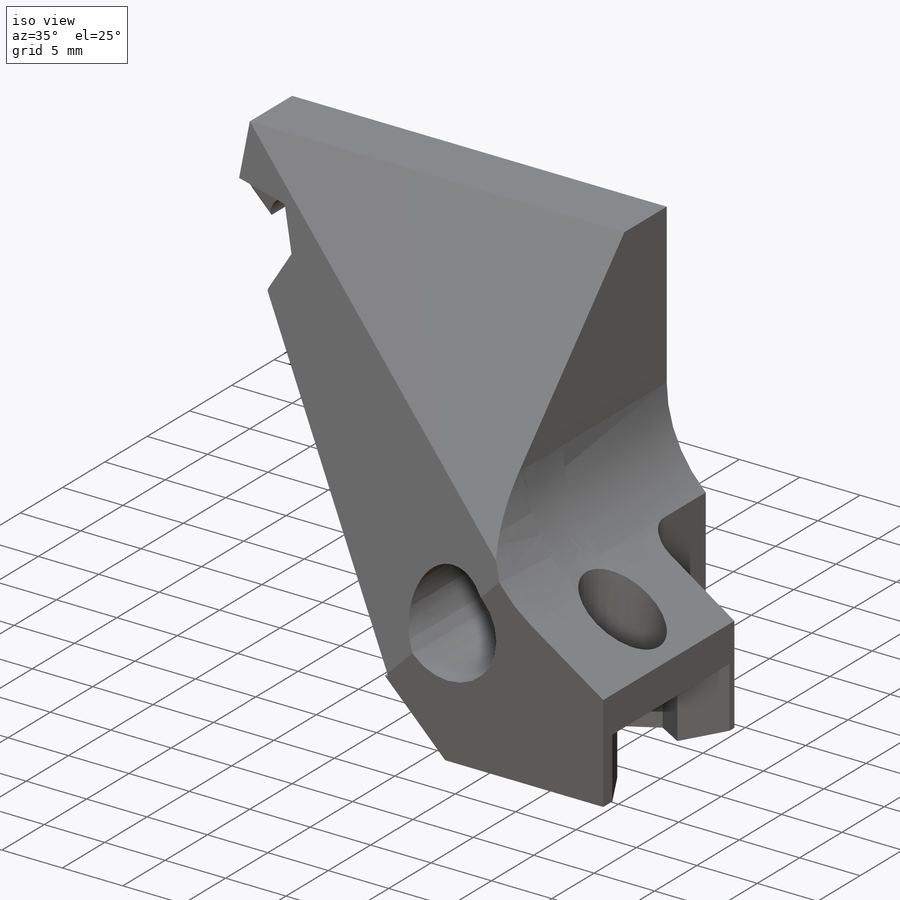
[diagram: iso view]
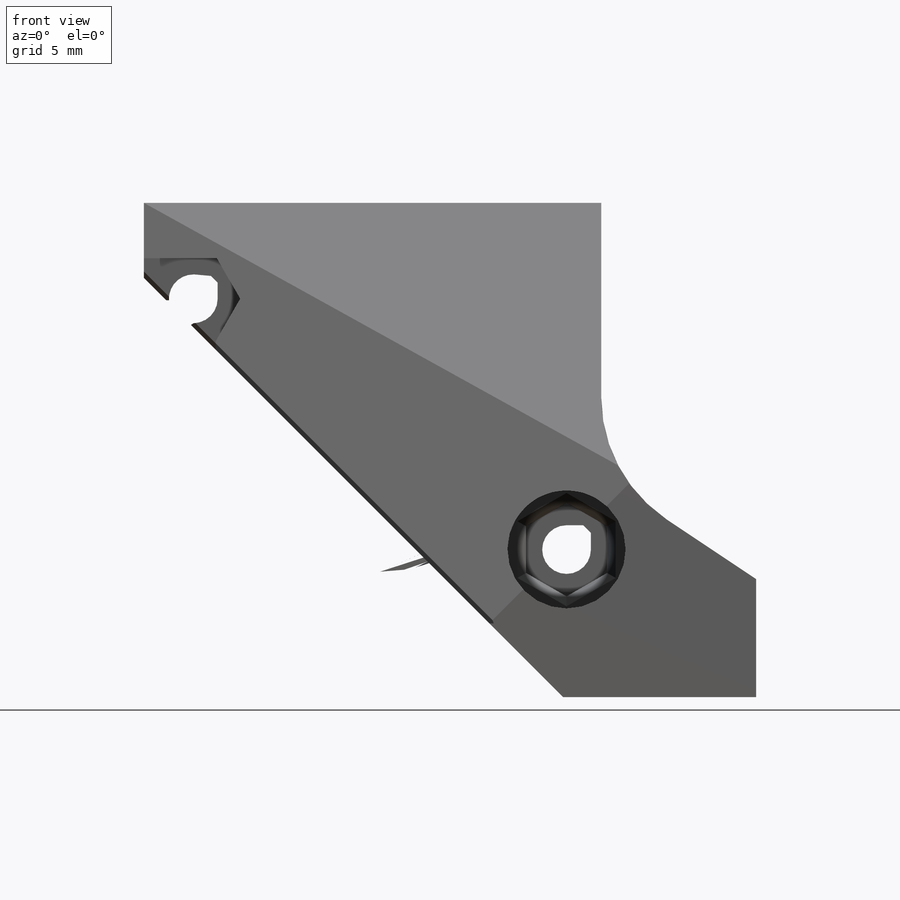
[diagram: front view]
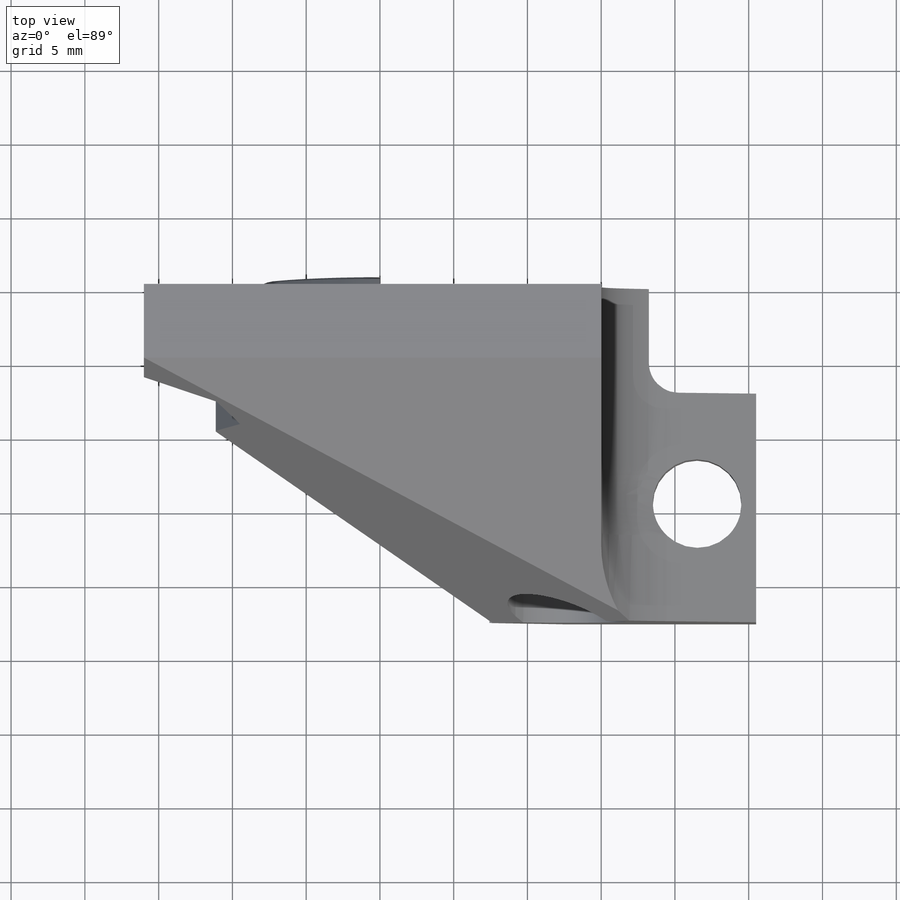
[diagram: top view]
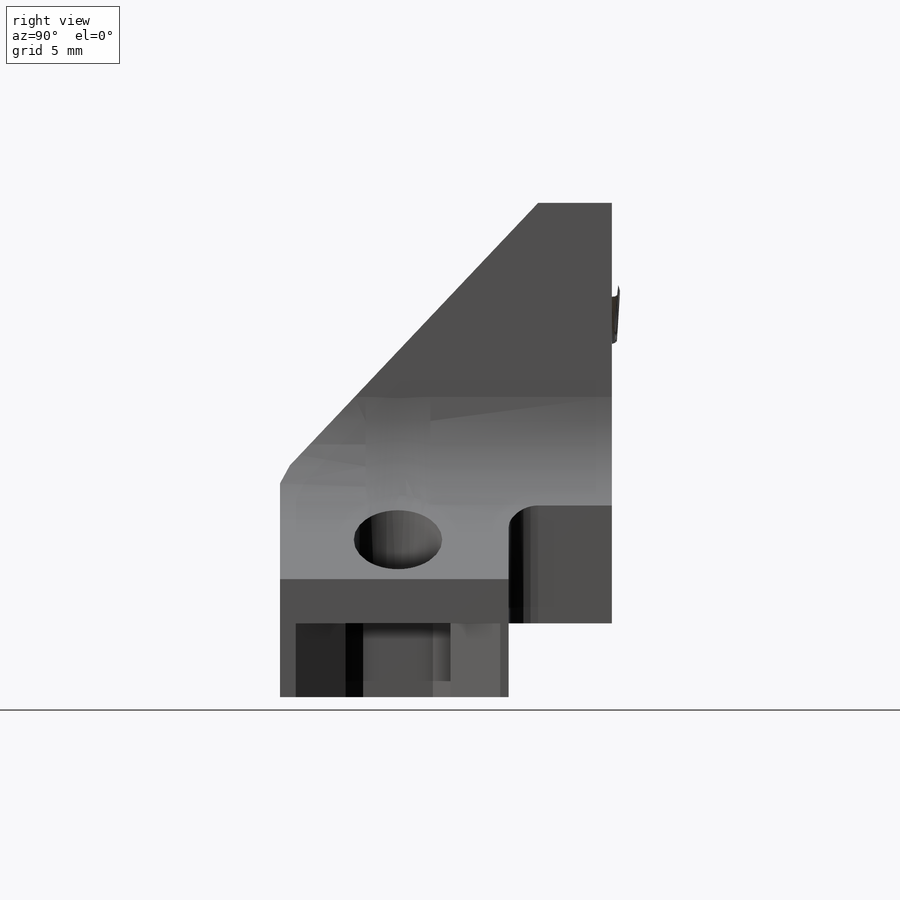
[diagram: right view]
SOLIDWORKS PART (.sldprt)
format: sldprt  version: not decoded by parser v0  size: 809,984 bytes
history: native  units: mm
features: sketch x9, cut_extrude x7, chamfer x3, extrude x2, material x1, fillet x1 (+13 scaffold rows collapsed)
feature tree (36):
  scaffold x13  (default folders/planes/origin — collapsed)
  material  "Custom Plastic"
  sketch  "Sketch1"  dims[c1.D2=3.3mm c1.D1=19.0mm c2.D2=24.0mm c2.D3=30.0mm c2.D4=27.5mm c2.D5=4.5mm c2.D6=10.5mm c2.D7=10.0mm c2.D8=40.5mm c3.D8=45.0deg c3.D6=4.0mm c3.D9=6.0mm c3.D3=31.0mm c3.D10=10.5mm c3.D11=22.0mm c3.D12=5.0mm c3.D5=8.5mm c4.D9=17.0mm c4.D6=~17.351082mm c5.D6=~0.143543deg c6.D6=~24.538135mm c7.D6=~4.474897deg c8.D6=~31.190939mm c9.D6=~0.143543deg c10.D6=~17.351082mm c11.D6=45.0deg c12.D6=15.0mm c12.D8=28.5mm]
  extrude  "Boss-Extrude1"  Depth=22.5mm
  chamfer  "Chamfer1"  Distance=7mm
  sketch  "Sketch2"  dims[c1.D1=~6.596524mm c1.D2=~6.596524mm c1.D3=6.0mm c1.D5=2.0mm c2.D1=14.5mm c2.D2=21.5mm c2.D4=7.0mm c2.D6=5.23mm]
  cut_extrude  "Cut-Extrude1"  [1 undecoded]
  sketch  "Sketch6"  dims[D1=5.0mm]
  cut_extrude  "Cut-Extrude6"  [1 undecoded]
  sketch  "Sketch7"
  cut_extrude  "Cut-Extrude7"  Depth=10mm
  sketch  "Sketch3"  dims[c1.D1=8.0mm c1.D2=6.5mm c2.D1=8.0mm c2.D2=~5.015683mm c3.D2=30.0deg]
  cut_extrude  "Cut-Extrude3"  Depth=8mm
  sketch  "Sketch4"  dims[D1=5.5mm]
  cut_extrude  "Cut-Extrude4"  Depth=3mm
  fillet  "Fillet1"  Radius=10mm
  sketch  "Sketch8"  dims[D1=0.32mm D2=0.32mm]
  cut_extrude  "Cut-Extrude8"  [1 undecoded]
  chamfer  "Chamfer2"  Distance=0.3mm Angle=45deg
  chamfer  "Chamfer3"  Distance=1mm Angle=30deg
  sketch  "Sketch9"  dims[D1=5.0mm]
  extrude  "Boss-Extrude2"  [1 undecoded]
  sketch  "Sketch11"  dims[D1=8.2mm]
  cut_extrude  "Cut-Extrude9"  [1 undecoded]
decode coverage: 16 of 22 modeling features carry decoded parameters
note: ~ marks probable driven/reference dimensions
note: 5 parameter values undecoded
summary: no parameter record found for 5 features
note: suppression state not decoded; provenance and decode notes live in map.json
